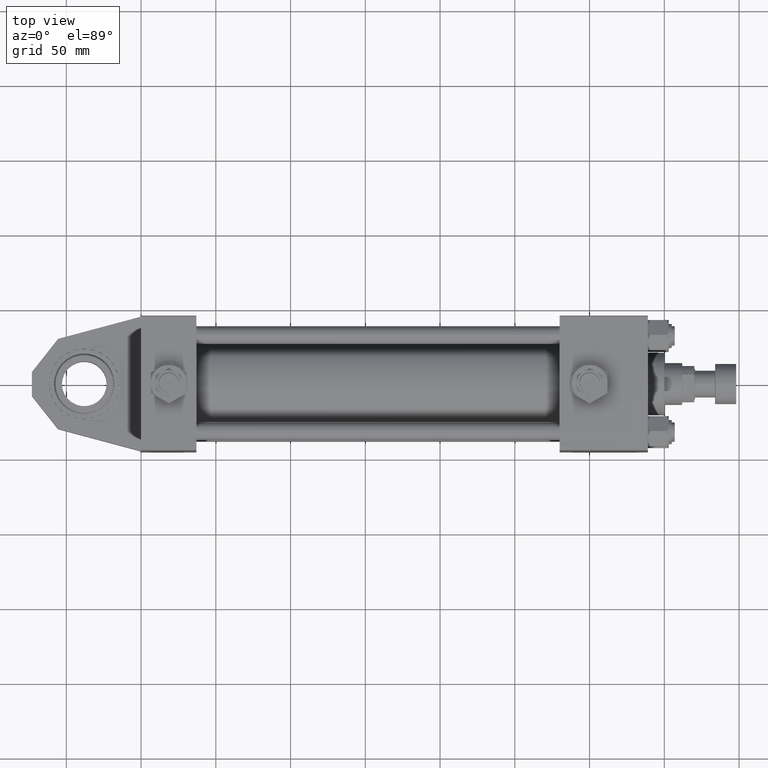
[diagram: clean part render]
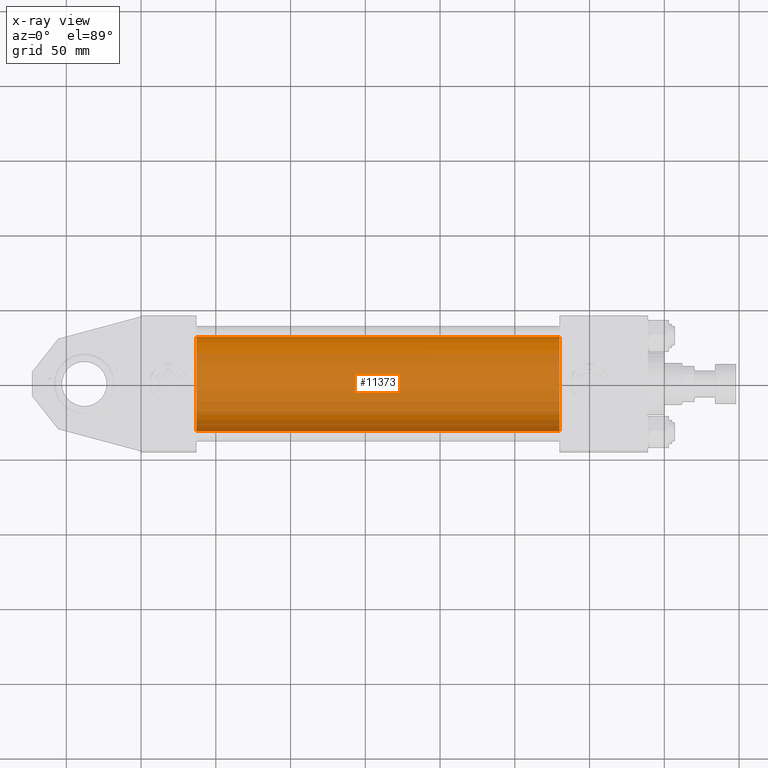
[diagram: x-ray — body ghosted, one internal face saturated and labeled with its STEP entity id]
A machine part, top view, then the same camera in x-ray: the body is ghosted and one INTERNAL B-rep face — a face not visible from any outside direction — is saturated and labeled: STEP entity #11373.
In plain terms, the highlighted cylindrical surface (partial cylindrical patch) has radius 31.5 mm, axis along (-1, 0, -0).
Its self-contained STEP definition (entity closure, byte-faithful):
#2671 = CIRCLE ( 'NONE', #39253, 31.50000000000000000 ) ;
#3040 = EDGE_CURVE ( 'NONE', #34027, #22445, #52564, .T. ) ;
#4164 = LINE ( 'NONE', #52655, #24063 ) ;
#6461 = CARTESIAN_POINT ( 'NONE',  ( 279.9999999999999432, -2.602085213965210642E-15, 31.50000000000000000 ) ) ;
#8436 = DIRECTION ( 'NONE',  ( -1.000000000000000000, -0.000000000000000000, -0.000000000000000000 ) ) ;
#9056 = VERTEX_POINT ( 'NONE', #41768 ) ;
#9569 = DIRECTION ( 'NONE',  ( 0.000000000000000000, 0.000000000000000000, -1.000000000000000000 ) ) ;
#10762 = EDGE_CURVE ( 'NONE', #9056, #15009, #2671, .T. ) ;
#11373 = ADVANCED_FACE ( 'NONE', ( #36538 ), #36274, .F. ) ;
#12178 = CARTESIAN_POINT ( 'NONE',  ( 37.00000000000000000, 1.255552203348951850E-15, -31.50000000000000000 ) ) ;
#15009 = VERTEX_POINT ( 'NONE', #12178 ) ;
#16028 = DIRECTION ( 'NONE',  ( -1.000000000000000000, -0.000000000000000000, -0.000000000000000000 ) ) ;
#18468 = DIRECTION ( 'NONE',  ( -1.000000000000000000, -0.000000000000000000, -0.000000000000000000 ) ) ;
#20840 = ORIENTED_EDGE ( 'NONE', *, *, #45539, .T. ) ;
#22445 = VERTEX_POINT ( 'NONE', #32153 ) ;
#24063 = VECTOR ( 'NONE', #8436, 1000.000000000000000 ) ;
#25732 = ORIENTED_EDGE ( 'NONE', *, *, #10762, .F. ) ;
#25817 = DIRECTION ( 'NONE',  ( 1.000000000000000000, 0.000000000000000000, 0.000000000000000000 ) ) ;
#30680 = ORIENTED_EDGE ( 'NONE', *, *, #3040, .T. ) ;
#31943 = DIRECTION ( 'NONE',  ( 1.000000000000000000, 0.000000000000000000, 0.000000000000000000 ) ) ;
#32153 = CARTESIAN_POINT ( 'NONE',  ( 279.9999999999999432, 1.255552203348951850E-15, -31.50000000000000000 ) ) ;
#32271 = DIRECTION ( 'NONE',  ( 0.000000000000000000, 0.000000000000000000, 1.000000000000000000 ) ) ;
#34027 = VERTEX_POINT ( 'NONE', #41307 ) ;
#36274 = CYLINDRICAL_SURFACE ( 'NONE', #45258, 31.50000000000000000 ) ;
#36538 = FACE_OUTER_BOUND ( 'NONE', #42049, .T. ) ;
#39253 = AXIS2_PLACEMENT_3D ( 'NONE', #47941, #31943, #43950 ) ;
#41307 = CARTESIAN_POINT ( 'NONE',  ( 279.9999999999999432, -2.602085213965210642E-15, 31.50000000000000000 ) ) ;
#41564 = EDGE_CURVE ( 'NONE', #34027, #9056, #50949, .T. ) ;
#41723 = ORIENTED_EDGE ( 'NONE', *, *, #41564, .F. ) ;
#41768 = CARTESIAN_POINT ( 'NONE',  ( 37.00000000000000000, -2.602085213965210642E-15, 31.50000000000000000 ) ) ;
#42049 = EDGE_LOOP ( 'NONE', ( #30680, #20840, #25732, #41723 ) ) ;
#43231 = AXIS2_PLACEMENT_3D ( 'NONE', #45794, #25817, #9569 ) ;
#43950 = DIRECTION ( 'NONE',  ( 0.000000000000000000, 0.000000000000000000, -1.000000000000000000 ) ) ;
#45258 = AXIS2_PLACEMENT_3D ( 'NONE', #52527, #16028, #32271 ) ;
#45539 = EDGE_CURVE ( 'NONE', #22445, #15009, #4164, .T. ) ;
#45794 = CARTESIAN_POINT ( 'NONE',  ( 279.9999999999999432, -2.602085213965210642E-15, 0.000000000000000000 ) ) ;
#47941 = CARTESIAN_POINT ( 'NONE',  ( 37.00000000000000000, -2.602085213965210642E-15, 0.000000000000000000 ) ) ;
#50949 = LINE ( 'NONE', #6461, #51145 ) ;
#51145 = VECTOR ( 'NONE', #18468, 1000.000000000000000 ) ;
#52527 = CARTESIAN_POINT ( 'NONE',  ( 279.9999999999999432, -2.602085213965210642E-15, 0.000000000000000000 ) ) ;
#52564 = CIRCLE ( 'NONE', #43231, 31.50000000000000000 ) ;
#52655 = CARTESIAN_POINT ( 'NONE',  ( 279.9999999999999432, 1.255552203348951850E-15, -31.50000000000000000 ) ) ;